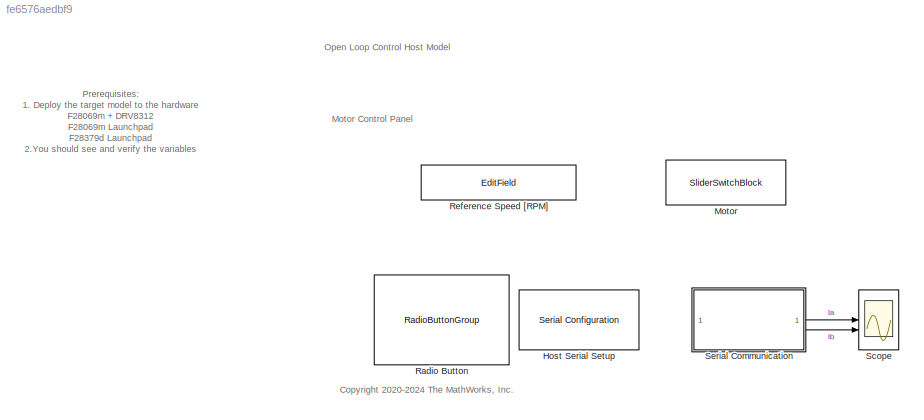
MODEL slx_fe6576aedbf9
KIND model
CONFIG AbsTol = auto
CONFIG EnableMultiTasking = on
CONFIG FixedStep = auto
CONFIG InitFcn = if( strcmp(get_param([gcs '/Serial Communication/HW_Selected'], 'Value'), '0'))\n      set_param([gcs '/Host Serial Setup'], 'BaudRate', '5.625e6');\nelseif( strcmp(get_param([gcs '/Serial Communication/HW_Selected'], 'Value'), '1'))\n      set_param([gcs '/Host Serial Setup'], 'BaudRate', '5e6');\nelse\n\nend
CONFIG MaxStep = auto
CONFIG MinStep = auto
CONFIG RelTol = 1e-3
CONFIG SampleTimeConstraint = Unconstrained
CONFIG SolverName = FixedStepDiscrete
CONFIG StartTime = 0.0
CONFIG StopTime = inf
BLOCK [Reference] Host Serial Setup  REF=instrumentseriallib/Serial Configuration
  LibrarySourceBlock = mcblib/Protection and Diagnostics/Host Serial Setup
  Priority = -99
  SourceBlock = instrumentseriallib/Serial Configuration
  SourceType = system.SerialConfiguration
BLOCK [SliderSwitchBlock] Motor
  LabelPosition = Hide
BLOCK [RadioButtonGroup] Radio Button
  ButtonGroupName = Target Selection
  LabelPosition = Hide
  SelectedLabel = TI F28069M
BLOCK [EditField] Reference Speed [RPM]
  Alignment = Center
  LabelPosition = Hide
  ShowInitialText = on
BLOCK [Scope] Scope
  DefaultConfigurationName = spbscopes.TimeScopeBlockCfg
  Floating = off
  NumInputPorts = 2
  ScopeSpecificationString = spbscopes.TimeScopeBlockCfg('CurrentConfiguration', extmgr.ConfigurationSet(extmgr.Configuration('Core','General UI',true),extmgr.Configuration('Core','Source UI',true),extmgr.Configuration('Sources','WiredSimulink',true,'PointsPerSignal',1000000),extmgr.Configuration('Visuals','Time Domain',true,'DisplayLayoutDimensions',[2 1],'DisplayPropertyDefaults',struct('AxesColor',[0 0 0],'AxesTickColor',[...<+2967ch>
  UserDataPersistent = on
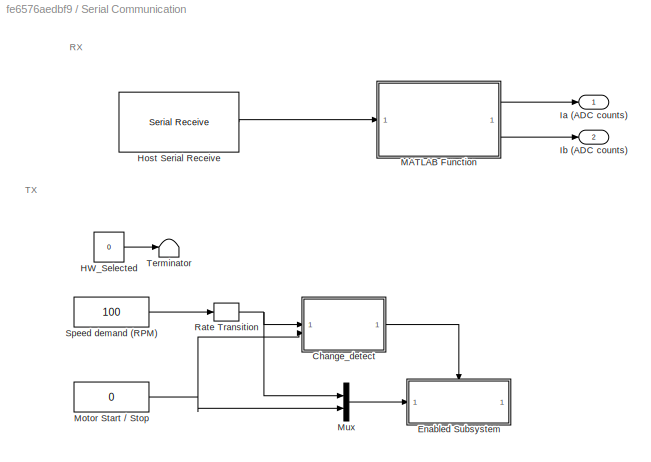
BLOCK [SubSystem] Serial Communication
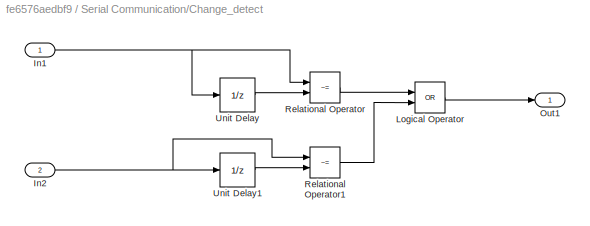
BLOCK [SubSystem] Serial Communication/Change_detect
BLOCK [Inport] Serial Communication/Change_detect/In1
BLOCK [Inport] Serial Communication/Change_detect/In2
  Port = 2
BLOCK [Logic] Serial Communication/Change_detect/Logical Operator
  AllPortsSameDT = off
  Operator = OR
  OutDataTypeStr = boolean
BLOCK [Outport] Serial Communication/Change_detect/Out1
  VectorParamsAs1DForOutWhenUnconnected = off
BLOCK [RelationalOperator] Serial Communication/Change_detect/Relational Operator
  InputSameDT = off
  Operator = ~=
  OutDataTypeStr = boolean
BLOCK [RelationalOperator] Serial Communication/Change_detect/Relational Operator1
  InputSameDT = off
  Operator = ~=
  OutDataTypeStr = boolean
BLOCK [UnitDelay] Serial Communication/Change_detect/Unit Delay
  HasFrameUpgradeWarning = on
  InitialCondition = 0.5
  SampleTime = -1
BLOCK [UnitDelay] Serial Communication/Change_detect/Unit Delay1
  HasFrameUpgradeWarning = on
  SampleTime = -1
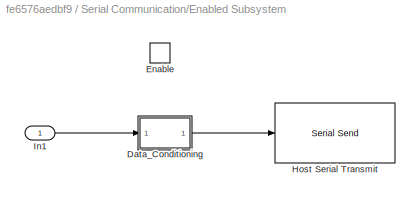
BLOCK [SubSystem] Serial Communication/Enabled Subsystem
  TreatAsAtomicUnit = on
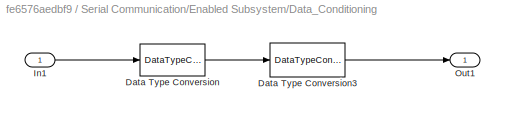
BLOCK [SubSystem] Serial Communication/Enabled Subsystem/Data_Conditioning
BLOCK [DataTypeConversion] Serial Communication/Enabled Subsystem/Data_Conditioning/Data Type Conversion
  OutDataTypeStr = int16
  RndMeth = Simplest
  SaturateOnIntegerOverflow = off
BLOCK [DataTypeConversion] Serial Communication/Enabled Subsystem/Data_Conditioning/Data Type Conversion3
  ConvertRealWorld = Stored Integer (SI)
  OutDataTypeStr = uint16
  RndMeth = Simplest
  SaturateOnIntegerOverflow = off
BLOCK [Inport] Serial Communication/Enabled Subsystem/Data_Conditioning/In1
BLOCK [Outport] Serial Communication/Enabled Subsystem/Data_Conditioning/Out1
  VectorParamsAs1DForOutWhenUnconnected = off
BLOCK [EnablePort] Serial Communication/Enabled Subsystem/Enable
BLOCK [Reference] Serial Communication/Enabled Subsystem/Host Serial Transmit  REF=instrumentseriallib/Serial Send
  LibrarySourceBlock = mcblib/Protection and Diagnostics/Host Serial Transmit
  SourceBlock = instrumentseriallib/Serial Send
  SourceType = system.SerialSend
BLOCK [Inport] Serial Communication/Enabled Subsystem/In1
BLOCK [Constant] Serial Communication/HW_Selected
  OutDataTypeStr = uint8
  Value = 0
BLOCK [Reference] Serial Communication/Host Serial Receive  REF=instrumentseriallib/Serial Receive
  LibrarySourceBlock = mcblib/Protection and Diagnostics/Host Serial Receive
  SourceBlock = instrumentseriallib/Serial Receive
  SourceType = system.SerialReceive
BLOCK [Outport] Serial Communication/Ia (ADC counts)
BLOCK [Outport] Serial Communication/Ib (ADC counts)
  Port = 2
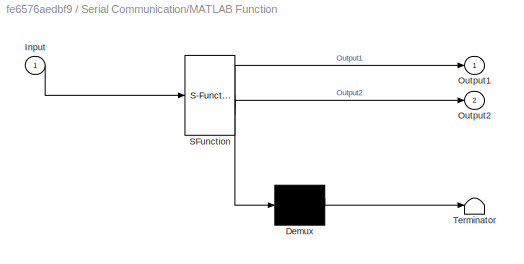
BLOCK [SubSystem] Serial Communication/MATLAB Function
  ErrorFcn = Stateflow.Translate.translate
  PermitHierarchicalResolution = ExplicitOnly
  SFBlockType = MATLAB Function
  TreatAsAtomicUnit = on
BLOCK [Demux] Serial Communication/MATLAB Function/ Demux 
  Outputs = 1
BLOCK [S-Function] Serial Communication/MATLAB Function/ SFunction 
  EnableBusSupport = off
  FunctionName = sf_sfun
  PortCounts = [1 3]
  SFcnIsStateOwnerBlock = off
  SFunctionDeploymentMode = off
  Tag = Stateflow S-Function 3
BLOCK [Terminator] Serial Communication/MATLAB Function/ Terminator 
BLOCK [Inport] Serial Communication/MATLAB Function/Input
BLOCK [Outport] Serial Communication/MATLAB Function/Output1
BLOCK [Outport] Serial Communication/MATLAB Function/Output2
  Port = 2
BLOCK [Constant] Serial Communication/Motor Start // Stop
  OutDataTypeStr = single
  SampleTime = 0.03
  Value = 0
  VectorParams1D = off
BLOCK [Mux] Serial Communication/Mux
  DisplayOption = bar
  Inputs = 2
BLOCK [RateTransition] Serial Communication/Rate Transition
  OutPortSampleTime = 0.03
BLOCK [Constant] Serial Communication/Speed demand (RPM)
  OutDataTypeStr = single
  SampleTime = 0.03
  Value = 100
  VectorParams1D = off
BLOCK [Terminator] Serial Communication/Terminator
ANNOTATION (root): Prerequisites: 1. Deploy the target model to the hardware F28069m + DRV8312 F28069m Launchpad F28379d Launchpad 2.You should see and verify the variables from the target model in the base workspace. Steps: 1. Select hardware in Target Selelction. Select 'Other' option if you want to manually set the baud rate in 'Host Serial Setup' block. 2. Select the port in Host Serial Setup , Host Serial Recei...<+291ch>
ANNOTATION (root): <copyright redacted>
ANNOTATION (root): Motor Control Panel
ANNOTATION (root): Open Loop Control Host Model
ANNOTATION Serial Communication: RX
ANNOTATION Serial Communication: TX
NET Serial Communication/Change_detect/In1:1 -> Serial Communication/Change_detect/Relational Operator:1, Serial Communication/Change_detect/Unit Delay:1
NET Serial Communication/Change_detect/In2:1 -> Serial Communication/Change_detect/Relational Operator1:1, Serial Communication/Change_detect/Unit Delay1:1
LINE Serial Communication/Change_detect/Logical Operator:1 -> Serial Communication/Change_detect/Out1:1
LINE Serial Communication/Change_detect/Relational Operator1:1 -> Serial Communication/Change_detect/Logical Operator:2
LINE Serial Communication/Change_detect/Relational Operator:1 -> Serial Communication/Change_detect/Logical Operator:1
LINE Serial Communication/Change_detect/Unit Delay1:1 -> Serial Communication/Change_detect/Relational Operator1:2
LINE Serial Communication/Change_detect/Unit Delay:1 -> Serial Communication/Change_detect/Relational Operator:2
LINE Serial Communication/Change_detect:1 -> Serial Communication/Enabled Subsystem:enable
LINE Serial Communication/Enabled Subsystem/Data_Conditioning/Data Type Conversion3:1 -> Serial Communication/Enabled Subsystem/Data_Conditioning/Out1:1
LINE Serial Communication/Enabled Subsystem/Data_Conditioning/Data Type Conversion:1 -> Serial Communication/Enabled Subsystem/Data_Conditioning/Data Type Conversion3:1
LINE Serial Communication/Enabled Subsystem/Data_Conditioning/In1:1 -> Serial Communication/Enabled Subsystem/Data_Conditioning/Data Type Conversion:1
LINE Serial Communication/Enabled Subsystem/Data_Conditioning:1 -> Serial Communication/Enabled Subsystem/Host Serial Transmit:1
LINE Serial Communication/Enabled Subsystem/In1:1 -> Serial Communication/Enabled Subsystem/Data_Conditioning:1
LINE Serial Communication/HW_Selected:1 -> Serial Communication/Terminator:1
LINE Serial Communication/Host Serial Receive:1 -> Serial Communication/MATLAB Function:1
LINE Serial Communication/MATLAB Function:1 -> Serial Communication/Ia (ADC counts):1
LINE Serial Communication/MATLAB Function:2 -> Serial Communication/Ib (ADC counts):1
NET Serial Communication/Motor Start // Stop:1 -> Serial Communication/Change_detect:2, Serial Communication/Mux:2
LINE Serial Communication/Mux:1 -> Serial Communication/Enabled Subsystem:1
NET Serial Communication/Rate Transition:1 -> Serial Communication/Change_detect:1, Serial Communication/Mux:1
LINE Serial Communication/Speed demand (RPM):1 -> Serial Communication/Rate Transition:1
LINE Serial Communication:1 -> Scope:1
LINE Serial Communication:2 -> Scope:2
note: NET lines group one-source signal fan-out (src -> all destinations, sorted); 1:1 wires keep LINE
CHART Serial Communication/MATLAB Function states=1 transitions=1
  STATE_LABEL 'eML_blk_kernel()'
  STATE_LABEL 'SCRIPT:\nfunction [ Output1, Output2] = unBuf(Input)\n\nOutput1= Input(:, 1);\nOutput2 = Input(:, 2);\nend'
CHART  states=0 transitions=0
